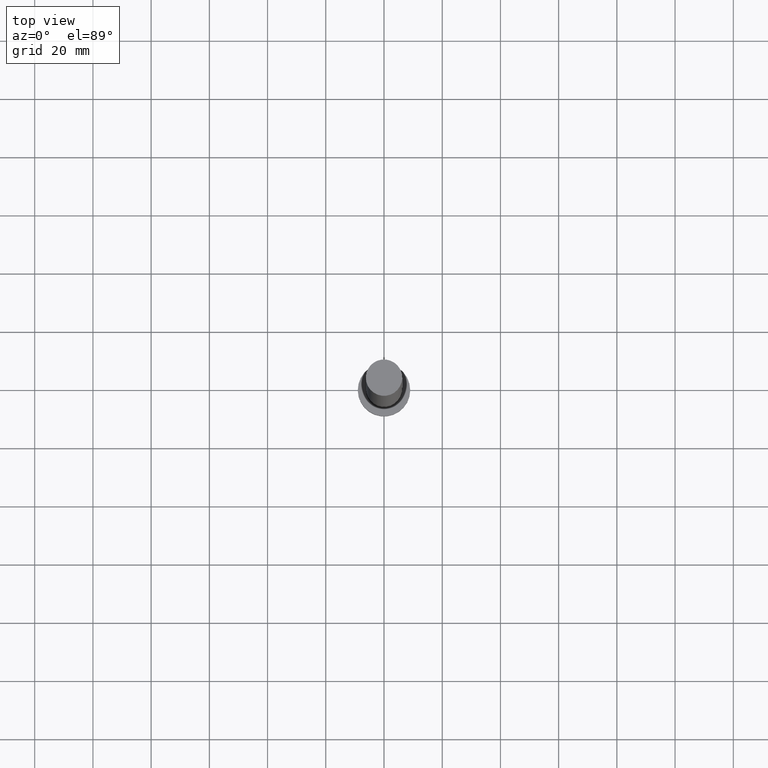
[diagram: clean part render]
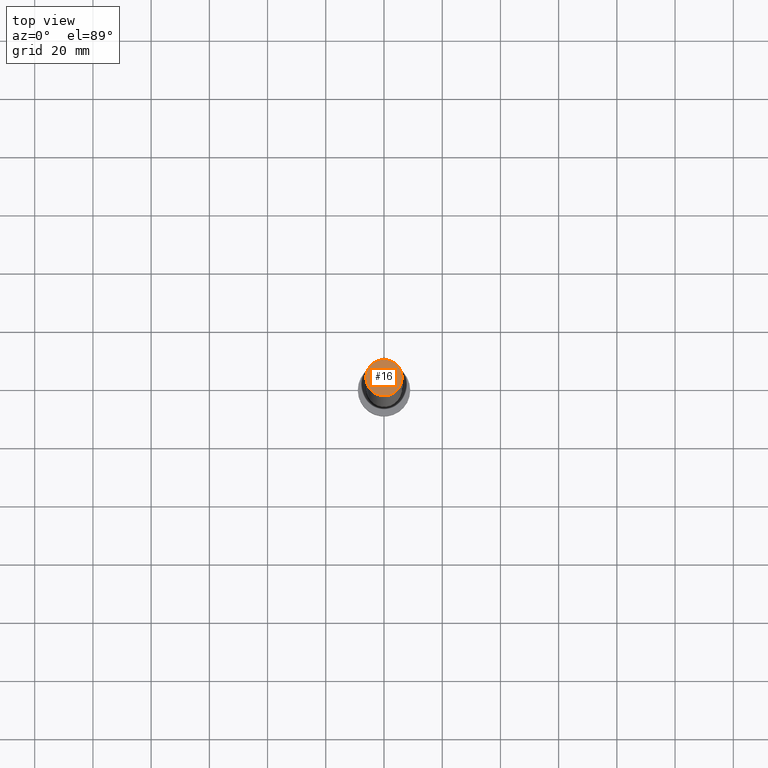
[diagram: same view with one face highlighted and labeled with its STEP entity id]
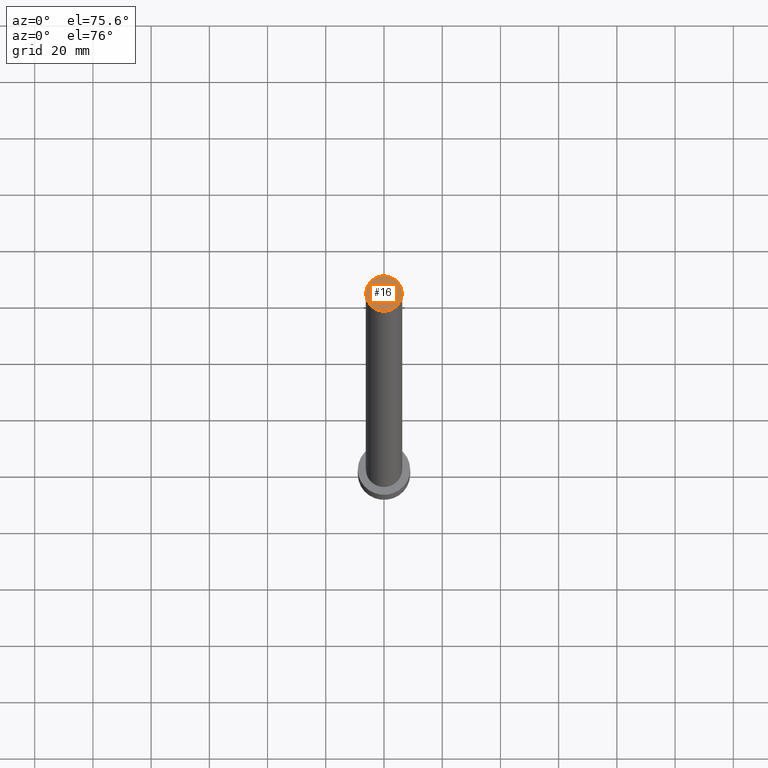
[diagram: same view with one face highlighted and labeled with its STEP entity id]
A machine part, top view. The second image highlights one B-rep face of the part: STEP entity #16.
A second angle (auxiliary view) of the same face is appended — the face is thin or edge-on in the first view.
In plain terms, the highlighted planar face has unit normal (0, 0, 1).
Its self-contained STEP definition (entity closure, byte-faithful):
#13 = DIRECTION ( 'NONE',  ( 1.000000000000000000, 0.000000000000000000, -0.000000000000000000 ) ) ;
#16 = ADVANCED_FACE ( 'NONE', ( #244 ), #33, .T. ) ;
#32 = EDGE_LOOP ( 'NONE', ( #47, #229 ) ) ;
#33 = PLANE ( 'NONE',  #148 ) ;
#47 = ORIENTED_EDGE ( 'NONE', *, *, #114, .T. ) ;
#80 = DIRECTION ( 'NONE',  ( 0.000000000000000000, 0.000000000000000000, 1.000000000000000000 ) ) ;
#89 = CIRCLE ( 'NONE', #116, 6.250000000000000000 ) ;
#94 = CARTESIAN_POINT ( 'NONE',  ( 0.000000000000000000, 0.000000000000000000, 250.0000000000000000 ) ) ;
#102 = VERTEX_POINT ( 'NONE', #199 ) ;
#107 = DIRECTION ( 'NONE',  ( 1.000000000000000000, 0.000000000000000000, 0.000000000000000000 ) ) ;
#114 = EDGE_CURVE ( 'NONE', #102, #215, #222, .T. ) ;
#116 = AXIS2_PLACEMENT_3D ( 'NONE', #173, #80, #249 ) ;
#127 = DIRECTION ( 'NONE',  ( 0.000000000000000000, 0.000000000000000000, 1.000000000000000000 ) ) ;
#131 = DIRECTION ( 'NONE',  ( 0.000000000000000000, 0.000000000000000000, 1.000000000000000000 ) ) ;
#140 = EDGE_CURVE ( 'NONE', #215, #102, #89, .T. ) ;
#148 = AXIS2_PLACEMENT_3D ( 'NONE', #185, #127, #13 ) ;
#171 = CARTESIAN_POINT ( 'NONE',  ( 6.250000000000000000, 7.654042494670957606E-16, 250.0000000000000000 ) ) ;
#173 = CARTESIAN_POINT ( 'NONE',  ( 0.000000000000000000, 0.000000000000000000, 250.0000000000000000 ) ) ;
#178 = AXIS2_PLACEMENT_3D ( 'NONE', #94, #131, #107 ) ;
#185 = CARTESIAN_POINT ( 'NONE',  ( 0.000000000000000000, 0.000000000000000000, 250.0000000000000000 ) ) ;
#199 = CARTESIAN_POINT ( 'NONE',  ( -6.250000000000000000, 0.000000000000000000, 250.0000000000000000 ) ) ;
#215 = VERTEX_POINT ( 'NONE', #171 ) ;
#222 = CIRCLE ( 'NONE', #178, 6.250000000000000000 ) ;
#229 = ORIENTED_EDGE ( 'NONE', *, *, #140, .T. ) ;
#244 = FACE_OUTER_BOUND ( 'NONE', #32, .T. ) ;
#249 = DIRECTION ( 'NONE',  ( 1.000000000000000000, 0.000000000000000000, 0.000000000000000000 ) ) ;